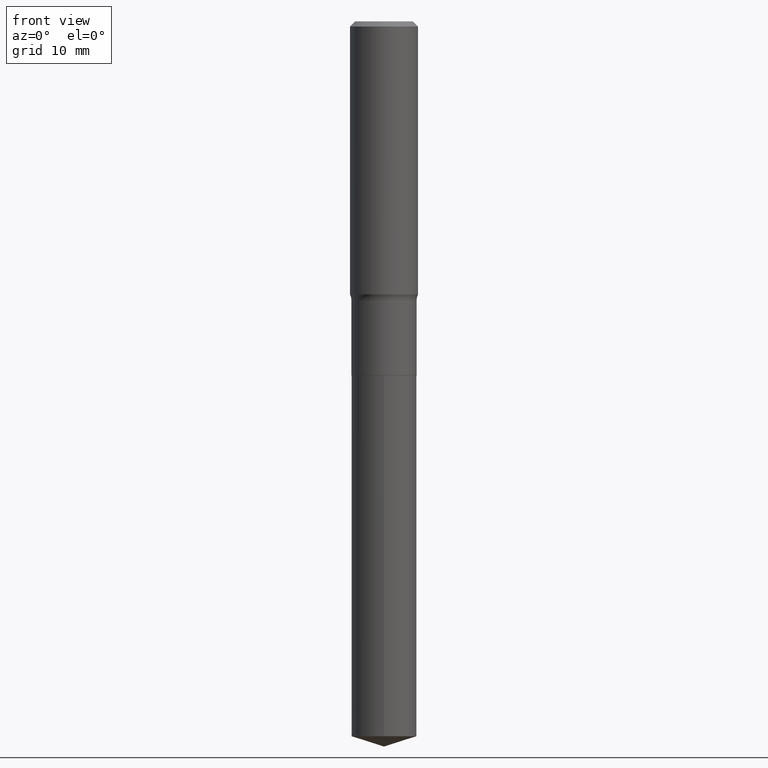
[diagram: clean part render]
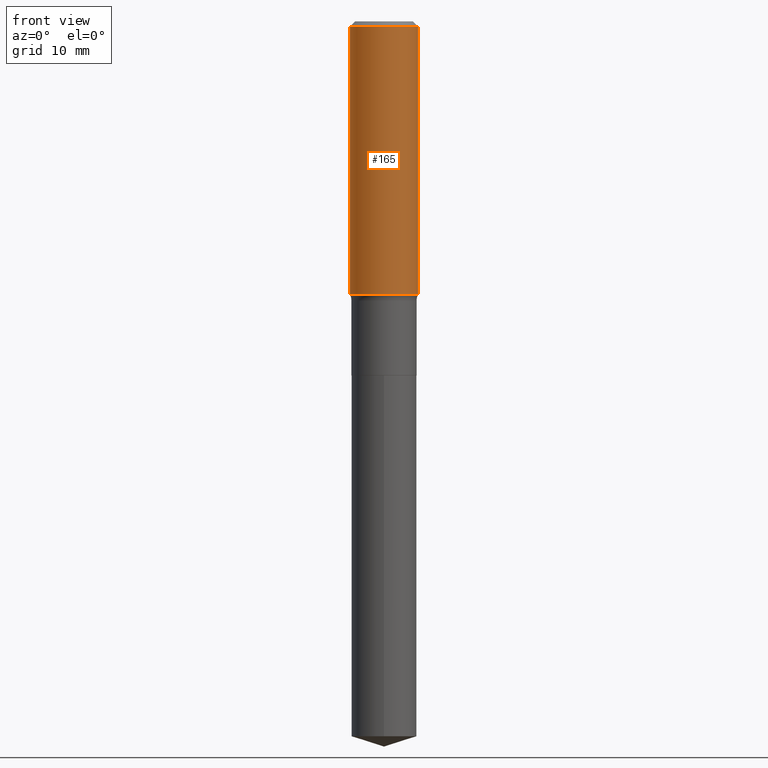
[diagram: same view with one face highlighted and labeled with its STEP entity id]
A machine part, front view. The second image highlights one B-rep face of the part: STEP entity #165.
In plain terms, the highlighted cylindrical surface (edge-blend (fillet) strip) has radius 4.7625 mm, axis along (-0, 0, 1).
Its self-contained STEP definition (entity closure, byte-faithful):
#13 = CARTESIAN_POINT ( 'NONE',  ( 0.000000000000000000, 0.000000000000000000, 0.000000000000000000 ) ) ;
#17 = CARTESIAN_POINT ( 'NONE',  ( -0.1875000000000001943, -3.925556172444020982E-15, -1.505900588240381976 ) ) ;
#36 = EDGE_CURVE ( 'NONE', #445, #68, #138, .T. ) ;
#37 = AXIS2_PLACEMENT_3D ( 'NONE', #199, #308, #469 ) ;
#68 = VERTEX_POINT ( 'NONE', #84 ) ;
#84 = CARTESIAN_POINT ( 'NONE',  ( 0.1875000000000000278, -1.407503414721139120E-15, -0.02812500000000015682 ) ) ;
#91 = CARTESIAN_POINT ( 'NONE',  ( 0.1875000000000001110, -1.309305502066175797E-15, 9.142831454617385217E-30 ) ) ;
#92 = EDGE_CURVE ( 'NONE', #335, #177, #413, .T. ) ;
#93 = DIRECTION ( 'NONE',  ( 1.000000000000000000, -6.982962677686266711E-15, 4.876176775795935793E-29 ) ) ;
#124 = FACE_OUTER_BOUND ( 'NONE', #228, .T. ) ;
#125 = VECTOR ( 'NONE', #238, 39.37007874015748143 ) ;
#138 = CIRCLE ( 'NONE', #250, 0.1875000000000000278 ) ;
#149 = LINE ( 'NONE', #91, #125 ) ;
#156 = ORIENTED_EDGE ( 'NONE', *, *, #448, .T. ) ;
#165 = ADVANCED_FACE ( 'NONE', ( #124 ), #430, .T. ) ;
#177 = VERTEX_POINT ( 'NONE', #378 ) ;
#187 = CARTESIAN_POINT ( 'NONE',  ( 6.877881017395734864E-31, -9.819791265496401309E-17, -0.02812500000000015682 ) ) ;
#199 = CARTESIAN_POINT ( 'NONE',  ( 3.682632913757702616E-29, -5.257823801994209619E-15, -1.505900588240381976 ) ) ;
#223 = DIRECTION ( 'NONE',  ( -2.445468806185136597E-29, 3.491481338843145583E-15, 1.000000000000000000 ) ) ;
#228 = EDGE_LOOP ( 'NONE', ( #374, #290, #156, #400 ) ) ;
#238 = DIRECTION ( 'NONE',  ( -2.445468806185136877E-29, 3.491481338843145188E-15, 1.000000000000000000 ) ) ;
#250 = AXIS2_PLACEMENT_3D ( 'NONE', #187, #302, #385 ) ;
#255 = VECTOR ( 'NONE', #475, 39.37007874015748143 ) ;
#267 = EDGE_CURVE ( 'NONE', #335, #445, #317, .T. ) ;
#290 = ORIENTED_EDGE ( 'NONE', *, *, #92, .T. ) ;
#302 = DIRECTION ( 'NONE',  ( -2.445468806185136597E-29, 3.491481338843145583E-15, 1.000000000000000000 ) ) ;
#306 = CARTESIAN_POINT ( 'NONE',  ( -0.1875000000000000278, -1.345743227774397834E-15, -0.02812500000000015682 ) ) ;
#308 = DIRECTION ( 'NONE',  ( -2.445468806185136597E-29, 3.491481338843145583E-15, 1.000000000000000000 ) ) ;
#317 = LINE ( 'NONE', #358, #255 ) ;
#335 = VERTEX_POINT ( 'NONE', #17 ) ;
#354 = AXIS2_PLACEMENT_3D ( 'NONE', #13, #223, #93 ) ;
#358 = CARTESIAN_POINT ( 'NONE',  ( -0.1875000000000001110, 1.332267629550188637E-15, -9.223003294227953596E-30 ) ) ;
#374 = ORIENTED_EDGE ( 'NONE', *, *, #267, .F. ) ;
#378 = CARTESIAN_POINT ( 'NONE',  ( 0.1875000000000001943, -6.567129304060385416E-15, -1.505900588240381976 ) ) ;
#385 = DIRECTION ( 'NONE',  ( 1.000000000000000000, -6.982962677686265922E-15, 0.000000000000000000 ) ) ;
#400 = ORIENTED_EDGE ( 'NONE', *, *, #36, .F. ) ;
#413 = CIRCLE ( 'NONE', #37, 0.1875000000000001943 ) ;
#430 = CYLINDRICAL_SURFACE ( 'NONE', #354, 0.1875000000000001110 ) ;
#445 = VERTEX_POINT ( 'NONE', #306 ) ;
#448 = EDGE_CURVE ( 'NONE', #177, #68, #149, .T. ) ;
#469 = DIRECTION ( 'NONE',  ( 1.000000000000000000, -6.982962677686265922E-15, 0.000000000000000000 ) ) ;
#475 = DIRECTION ( 'NONE',  ( -2.445468806185136877E-29, 3.491481338843145188E-15, 1.000000000000000000 ) ) ;